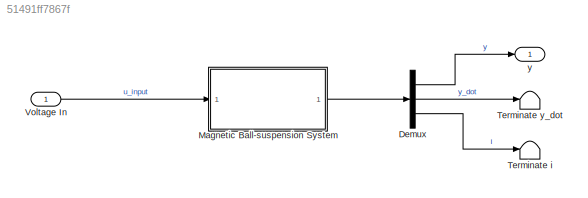
MODEL slx_51491ff7867f
KIND model
CONFIG AbsTol = auto
CONFIG EnableMultiTasking = off
CONFIG FixedStep = auto
CONFIG MaxStep = auto
CONFIG MinStep = auto
CONFIG RelTol = 1e-3
CONFIG SampleTimeConstraint = Unconstrained
CONFIG SolverName = VariableStepAuto
CONFIG StartTime = 0.0
CONFIG StopTime = 1
BLOCK [Demux] Demux
  Outputs = 3
  Ports = [1, 3]
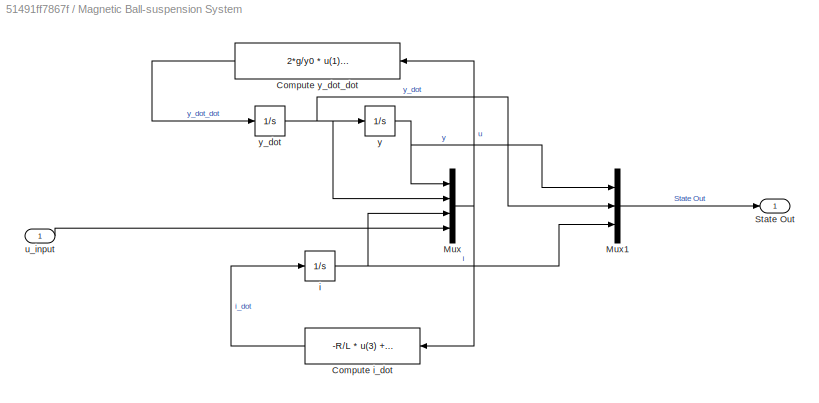
BLOCK [SubSystem] Magnetic Ball-suspension System
  Ports = [1, 1]
BLOCK [Fcn] Magnetic Ball-suspension System/Compute i_dot
  Expr = -R/L * u(3) + 1/L*u(4)
BLOCK [Fcn] Magnetic Ball-suspension System/Compute y_dot_dot
  Expr = 2*g/y0 * u(1) - 2/y0*sqrt(g/M) * u(3)
BLOCK [Mux] Magnetic Ball-suspension System/Mux
  DisplayOption = bar
  Ports = [4, 1]
BLOCK [Mux] Magnetic Ball-suspension System/Mux1
  DisplayOption = bar
  Inputs = 3
  Ports = [3, 1]
BLOCK [Outport] Magnetic Ball-suspension System/State Out
BLOCK [Integrator] Magnetic Ball-suspension System/i
  InitialCondition = sqrt(M*g*y0^2)
  Ports = [1, 1]
BLOCK [Inport] Magnetic Ball-suspension System/u_input
BLOCK [Integrator] Magnetic Ball-suspension System/y
  InitialCondition = y0
  Ports = [1, 1]
BLOCK [Integrator] Magnetic Ball-suspension System/y_dot
  Ports = [1, 1]
BLOCK [Terminator] Terminate i
BLOCK [Terminator] Terminate y_dot
BLOCK [Inport] Voltage In
BLOCK [Outport] y
LINE Demux:1 -> y:1
LINE Demux:2 -> Terminate y_dot:1
LINE Demux:3 -> Terminate i:1
LINE Magnetic Ball-suspension System/Compute i_dot:1 -> Magnetic Ball-suspension System/i:1
LINE Magnetic Ball-suspension System/Compute y_dot_dot:1 -> Magnetic Ball-suspension System/y_dot:1
LINE Magnetic Ball-suspension System/Mux1:1 -> Magnetic Ball-suspension System/State Out:1
NET Magnetic Ball-suspension System/Mux:1 -> Magnetic Ball-suspension System/Compute i_dot:1, Magnetic Ball-suspension System/Compute y_dot_dot:1
NET Magnetic Ball-suspension System/i:1 -> Magnetic Ball-suspension System/Mux1:3, Magnetic Ball-suspension System/Mux:3
LINE Magnetic Ball-suspension System/u_input:1 -> Magnetic Ball-suspension System/Mux:4
NET Magnetic Ball-suspension System/y:1 -> Magnetic Ball-suspension System/Mux1:1, Magnetic Ball-suspension System/Mux:1
NET Magnetic Ball-suspension System/y_dot:1 -> Magnetic Ball-suspension System/Mux1:2, Magnetic Ball-suspension System/Mux:2, Magnetic Ball-suspension System/y:1
LINE Magnetic Ball-suspension System:1 -> Demux:1
LINE Voltage In:1 -> Magnetic Ball-suspension System:1
note: NET lines group one-source signal fan-out (src -> all destinations, sorted); 1:1 wires keep LINE
